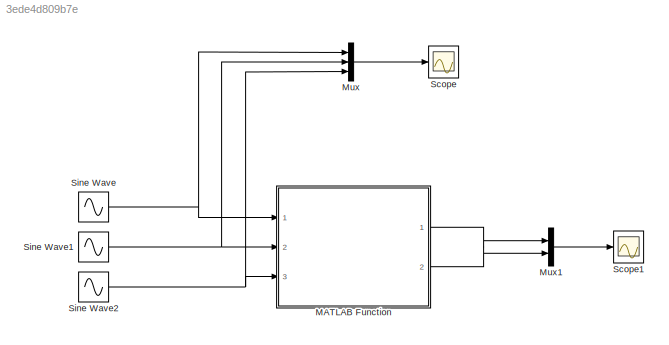
MODEL slx_3ede4d809b7e
KIND model
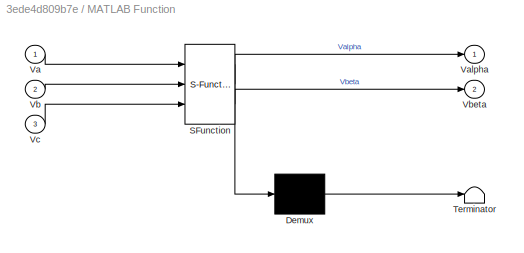
BLOCK [SubSystem] MATLAB Function
  ErrorFcn = Stateflow.Translate.translate
  PermitHierarchicalResolution = ExplicitOnly
  Ports = [3, 2]
  RequestExecContextInheritance = off
  SFBlockType = MATLAB Function
  TreatAsAtomicUnit = on
BLOCK [Demux] MATLAB Function/ Demux 
  Outputs = 1
  Ports = [1, 1]
BLOCK [S-Function] MATLAB Function/ SFunction 
  EnableBusSupport = on
  FunctionName = sf_sfun
  PortCounts = [3 3]
  Ports = [3, 3]
  Tag = Stateflow S-Function Transformada_Clarke_Tensao 2
BLOCK [Terminator] MATLAB Function/ Terminator 
BLOCK [Inport] MATLAB Function/Va
  IconDisplay = Port number
BLOCK [Outport] MATLAB Function/Valpha
  IconDisplay = Port number
BLOCK [Inport] MATLAB Function/Vb
  IconDisplay = Port number
  Port = 2
BLOCK [Outport] MATLAB Function/Vbeta
  IconDisplay = Port number
  Port = 2
BLOCK [Inport] MATLAB Function/Vc
  IconDisplay = Port number
  Port = 3
BLOCK [Mux] Mux
  DisplayOption = bar
  Inputs = 3
  Ports = [3, 1]
BLOCK [Mux] Mux1
  DisplayOption = bar
  Inputs = 2
  Ports = [2, 1]
BLOCK [Scope] Scope
  DataFormat = StructureWithTime
  Floating = off
  NumInputPorts = 1
  Ports = [1]
  SampleTime = 0
  ShowLegends = off
BLOCK [Scope] Scope1
  DataFormat = StructureWithTime
  Floating = off
  NumInputPorts = 1
  Ports = [1]
  SampleTime = 0
  SaveName = ScopeData1
  ShowLegends = off
BLOCK [Sin] Sine Wave
  Amplitude = 110*sqrt(2)
  Frequency = 2*pi*60
  Ports = [0, 1]
  SampleTime = 0
BLOCK [Sin] Sine Wave1
  Amplitude = 110*sqrt(2)
  Frequency = 2*pi*60
  Phase = 2*pi/3
  Ports = [0, 1]
  SampleTime = 0
BLOCK [Sin] Sine Wave2
  Amplitude = 110*sqrt(2)
  Frequency = 2*pi*60
  Phase = -2*pi/3
  Ports = [0, 1]
  SampleTime = 0
LINE MATLAB Function:1 -> Mux1:1
LINE MATLAB Function:2 -> Mux1:2
LINE Mux1:1 -> Scope1:1
LINE Mux:1 -> Scope:1
NET Sine Wave1:1 -> MATLAB Function:2, Mux:2
NET Sine Wave2:1 -> MATLAB Function:3, Mux:3
NET Sine Wave:1 -> MATLAB Function:1, Mux:1
note: NET lines group one-source signal fan-out (src -> all destinations, sorted); 1:1 wires keep LINE
